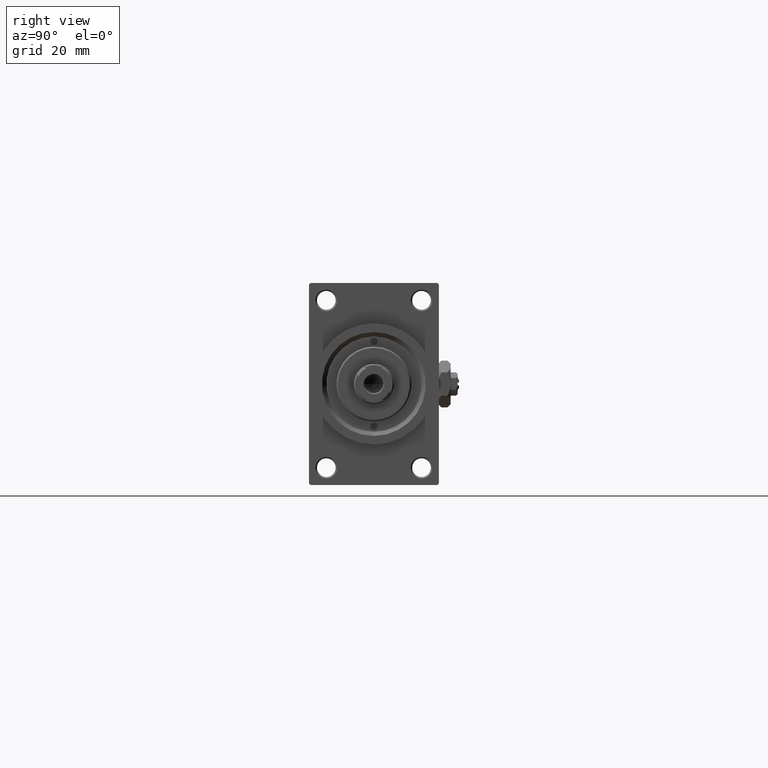
[diagram: clean part render]
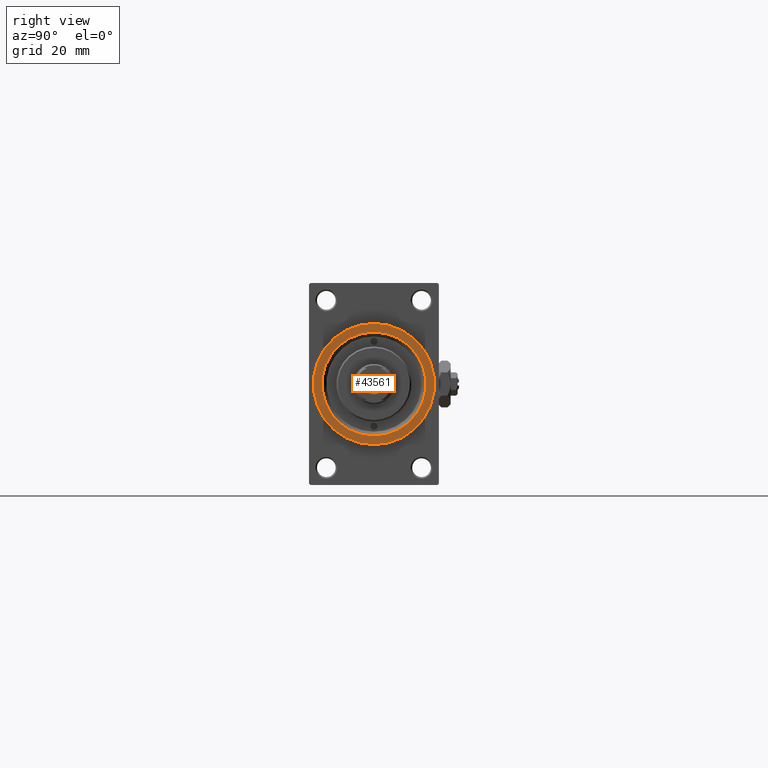
[diagram: same view with one face highlighted and labeled with its STEP entity id]
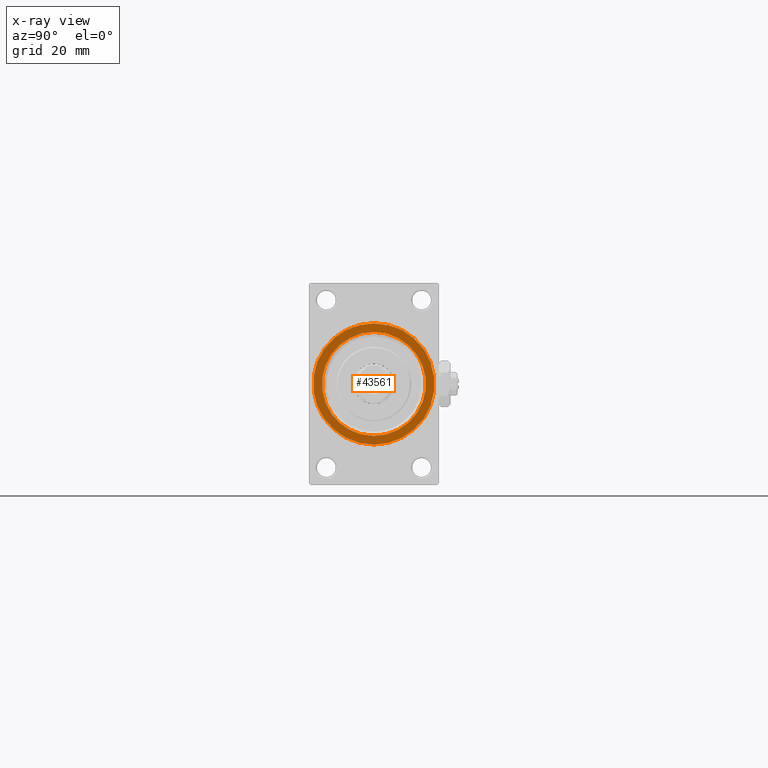
[diagram: x-ray of the same camera — body ghosted, the highlighted face saturated]
A machine part, right view. The second image highlights one B-rep face of the part: STEP entity #43561.
The next image is the same camera in x-ray: the body ghosted, the highlighted face saturated — about 0% of this face is hidden behind the body in this view.
In plain terms, the highlighted planar face has unit normal (1, 0, 0).
Its self-contained STEP definition (entity closure, byte-faithful):
#744 = AXIS2_PLACEMENT_3D ( 'NONE', #36641, #30633, #4183 ) ;
#1235 = EDGE_LOOP ( 'NONE', ( #44461, #8912 ) ) ;
#1362 = PLANE ( 'NONE',  #4382 ) ;
#2279 = DIRECTION ( 'NONE',  ( 1.000000000000000000, 0.000000000000000000, 0.000000000000000000 ) ) ;
#4183 = DIRECTION ( 'NONE',  ( 0.000000000000000000, 0.000000000000000000, -1.000000000000000000 ) ) ;
#4382 = AXIS2_PLACEMENT_3D ( 'NONE', #42552, #46523, #30837 ) ;
#6223 = EDGE_CURVE ( 'NONE', #46480, #40504, #23830, .T. ) ;
#8195 = EDGE_LOOP ( 'NONE', ( #39198, #25105 ) ) ;
#8912 = ORIENTED_EDGE ( 'NONE', *, *, #27626, .T. ) ;
#9101 = VERTEX_POINT ( 'NONE', #40523 ) ;
#13947 = CARTESIAN_POINT ( 'NONE',  ( 203.0000000000000000, 0.000000000000000000, 0.000000000000000000 ) ) ;
#14184 = DIRECTION ( 'NONE',  ( 0.000000000000000000, 0.000000000000000000, -1.000000000000000000 ) ) ;
#15466 = AXIS2_PLACEMENT_3D ( 'NONE', #46922, #27963, #20465 ) ;
#15594 = FACE_BOUND ( 'NONE', #8195, .T. ) ;
#16126 = AXIS2_PLACEMENT_3D ( 'NONE', #13947, #37196, #14184 ) ;
#17254 = EDGE_CURVE ( 'NONE', #40504, #46480, #28109, .T. ) ;
#17471 = DIRECTION ( 'NONE',  ( 0.000000000000000000, 0.000000000000000000, -1.000000000000000000 ) ) ;
#19861 = EDGE_CURVE ( 'NONE', #9101, #23350, #45740, .T. ) ;
#20465 = DIRECTION ( 'NONE',  ( 0.000000000000000000, 0.000000000000000000, -1.000000000000000000 ) ) ;
#23350 = VERTEX_POINT ( 'NONE', #43000 ) ;
#23830 = CIRCLE ( 'NONE', #744, 18.00000000000001421 ) ;
#25105 = ORIENTED_EDGE ( 'NONE', *, *, #6223, .T. ) ;
#26909 = CARTESIAN_POINT ( 'NONE',  ( 203.0000000000000000, 0.000000000000000000, -18.00000000000001421 ) ) ;
#27626 = EDGE_CURVE ( 'NONE', #23350, #9101, #33133, .T. ) ;
#27709 = CARTESIAN_POINT ( 'NONE',  ( 203.0000000000000000, 2.204364238465237794E-15, 18.00000000000001421 ) ) ;
#27963 = DIRECTION ( 'NONE',  ( 1.000000000000000000, 0.000000000000000000, 0.000000000000000000 ) ) ;
#28109 = CIRCLE ( 'NONE', #16126, 18.00000000000001421 ) ;
#30633 = DIRECTION ( 'NONE',  ( -1.000000000000000000, -0.000000000000000000, -0.000000000000000000 ) ) ;
#30837 = DIRECTION ( 'NONE',  ( 0.000000000000000000, 0.000000000000000000, -1.000000000000000000 ) ) ;
#33133 = CIRCLE ( 'NONE', #41900, 21.00000000000000000 ) ;
#36641 = CARTESIAN_POINT ( 'NONE',  ( 203.0000000000000000, 0.000000000000000000, 0.000000000000000000 ) ) ;
#37196 = DIRECTION ( 'NONE',  ( -1.000000000000000000, -0.000000000000000000, -0.000000000000000000 ) ) ;
#39198 = ORIENTED_EDGE ( 'NONE', *, *, #17254, .T. ) ;
#40227 = CARTESIAN_POINT ( 'NONE',  ( 203.0000000000000000, 0.000000000000000000, 0.000000000000000000 ) ) ;
#40504 = VERTEX_POINT ( 'NONE', #26909 ) ;
#40523 = CARTESIAN_POINT ( 'NONE',  ( 203.0000000000000000, 0.000000000000000000, 21.00000000000000000 ) ) ;
#41900 = AXIS2_PLACEMENT_3D ( 'NONE', #40227, #2279, #17471 ) ;
#42552 = CARTESIAN_POINT ( 'NONE',  ( 203.0000000000000000, 0.000000000000000000, 0.000000000000000000 ) ) ;
#43000 = CARTESIAN_POINT ( 'NONE',  ( 203.0000000000000000, 2.571758278209441661E-15, -21.00000000000000000 ) ) ;
#43278 = FACE_OUTER_BOUND ( 'NONE', #1235, .T. ) ;
#43561 = ADVANCED_FACE ( 'NONE', ( #15594, #43278 ), #1362, .T. ) ;
#44461 = ORIENTED_EDGE ( 'NONE', *, *, #19861, .T. ) ;
#45740 = CIRCLE ( 'NONE', #15466, 21.00000000000000000 ) ;
#46480 = VERTEX_POINT ( 'NONE', #27709 ) ;
#46523 = DIRECTION ( 'NONE',  ( 1.000000000000000000, 0.000000000000000000, 0.000000000000000000 ) ) ;
#46922 = CARTESIAN_POINT ( 'NONE',  ( 203.0000000000000000, 0.000000000000000000, 0.000000000000000000 ) ) ;